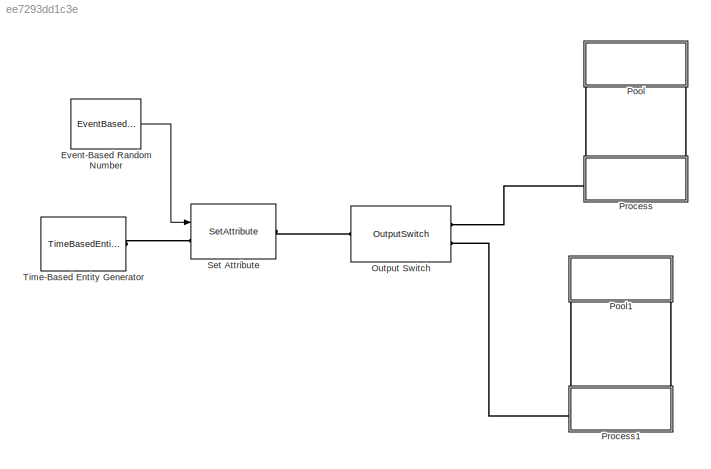
MODEL slx_ee7293dd1c3e
KIND model
BLOCK [EventBasedRandomNumber] Event-Based Random Number
  Distribution = Arbitrary discrete
  OutputPortMap = o0
  Ports = [0, 1]
  probVecDisc = [0.4 0.6]
  valueVecDisc = [1 2]
BLOCK [OutputSwitch] Output Switch
  AttributeName = Type
  NumberOutputPorts = 2
  Ports = [0, 0, 0, 0, 0, 1, 2]
  SwitchingCriterion = From attribute
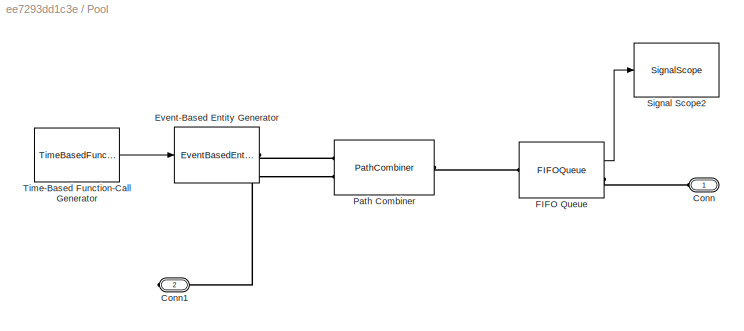
BLOCK [SubSystem] Pool
  FunctionWithSeparateData = off
  MaskHideContents = off
  MinAlgLoopOccurrences = off
  Opaque = off
  Ports = [0, 0, 0, 0, 0, 1, 1]
  PropExecContextOutsideSubsystem = off
  RTWSystemCode = Auto
  RequestExecContextInheritance = off
BLOCK [PMIOPort] Pool/Conn
  Port = 1
  Side = Left
BLOCK [PMIOPort] Pool/Conn1
  Port = 2
  Side = Right
BLOCK [EventBasedEntityGenerator] Pool/Event-Based Entity Generator
  GenerateEntitiesUpon = Function call from port fcn
  InputPortMap = u0
  Ports = [1, 0, 0, 0, 0, 0, 1]
BLOCK [FIFOQueue] Pool/FIFO Queue
  OutputPortMap = o1
  Ports = [0, 1, 0, 0, 0, 1, 1]
  StatNumberInBlock = on
BLOCK [PathCombiner] Pool/Path Combiner
  InputPortPrecedence = Round robin
  NumberInputPorts = 2
  Ports = [0, 0, 0, 0, 0, 2, 1]
BLOCK [SignalScope] Pool/Signal Scope2
  CopyFcn = des.scope.CallbackSupport('seCopyFcn',gcbh)
  DeleteFcn = des.scope.CallbackSupport('seDeleteFcn',gcbh)
  InputPortMap = u0
  LoadFcn = des.scope.CallbackSupport('seLoadFcn',gcbh)
  NameChangeFcn = des.scope.CallbackSupport('seNameChangeFcn',gcbh)
  OpenFcn = des.scope.CallbackSupport('seOpenFcn',gcbh)
  Ports = [1]
  PreSaveFcn = des.scope.CallbackSupport('sePreSaveFcn',gcbh)
  StartFcn = des.scope.CallbackSupport('seStartFcn',gcbh)
  StopFcn = des.scope.CallbackSupport('seStopFcn',gcbh)
BLOCK [TimeBasedFunctionCallGenerator] Pool/Time-Based Function-Call Generator
  EventGenerationMode = Only at simulation start
  NumberOfEventsPerPeriod = 4
  OutputPortMap = o0
  Ports = [0, 1]
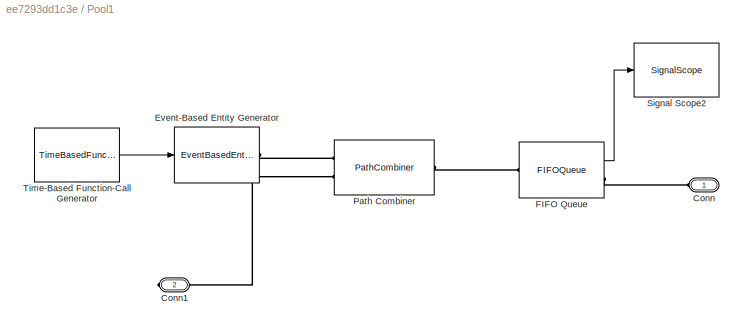
BLOCK [SubSystem] Pool1
  FunctionWithSeparateData = off
  MaskHideContents = off
  MinAlgLoopOccurrences = off
  Opaque = off
  Ports = [0, 0, 0, 0, 0, 1, 1]
  PropExecContextOutsideSubsystem = off
  RTWSystemCode = Auto
  RequestExecContextInheritance = off
BLOCK [PMIOPort] Pool1/Conn
  Port = 1
  Side = Left
BLOCK [PMIOPort] Pool1/Conn1
  Port = 2
  Side = Right
BLOCK [EventBasedEntityGenerator] Pool1/Event-Based Entity Generator
  GenerateEntitiesUpon = Function call from port fcn
  InputPortMap = u0
  Ports = [1, 0, 0, 0, 0, 0, 1]
BLOCK [FIFOQueue] Pool1/FIFO Queue
  OutputPortMap = o1
  Ports = [0, 1, 0, 0, 0, 1, 1]
  StatNumberInBlock = on
BLOCK [PathCombiner] Pool1/Path Combiner
  InputPortPrecedence = Round robin
  NumberInputPorts = 2
  Ports = [0, 0, 0, 0, 0, 2, 1]
BLOCK [SignalScope] Pool1/Signal Scope2
  CopyFcn = des.scope.CallbackSupport('seCopyFcn',gcbh)
  DeleteFcn = des.scope.CallbackSupport('seDeleteFcn',gcbh)
  InputPortMap = u0
  LoadFcn = des.scope.CallbackSupport('seLoadFcn',gcbh)
  NameChangeFcn = des.scope.CallbackSupport('seNameChangeFcn',gcbh)
  OpenFcn = des.scope.CallbackSupport('seOpenFcn',gcbh)
  Ports = [1]
  PreSaveFcn = des.scope.CallbackSupport('sePreSaveFcn',gcbh)
  StartFcn = des.scope.CallbackSupport('seStartFcn',gcbh)
  StopFcn = des.scope.CallbackSupport('seStopFcn',gcbh)
BLOCK [TimeBasedFunctionCallGenerator] Pool1/Time-Based Function-Call Generator
  EventGenerationMode = Only at simulation start
  NumberOfEventsPerPeriod = 4
  OutputPortMap = o0
  Ports = [0, 1]
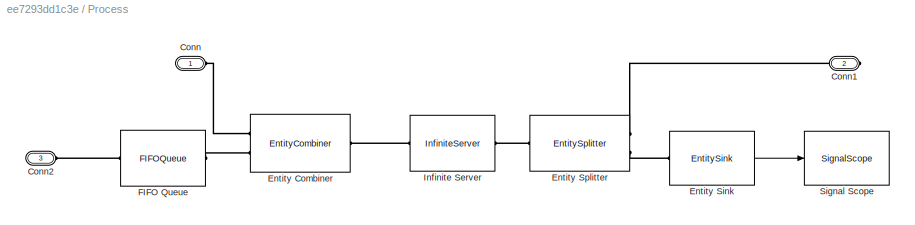
BLOCK [SubSystem] Process
  FunctionWithSeparateData = off
  MaskHideContents = off
  MinAlgLoopOccurrences = off
  Opaque = off
  Ports = [0, 0, 0, 0, 0, 2, 1]
  PropExecContextOutsideSubsystem = off
  RTWSystemCode = Auto
  RequestExecContextInheritance = off
BLOCK [PMIOPort] Process/Conn
  Port = 1
  Side = Left
BLOCK [PMIOPort] Process/Conn1
  Port = 2
  Side = Right
BLOCK [PMIOPort] Process/Conn2
  Port = 3
  Side = Left
BLOCK [EntityCombiner] Process/Entity Combiner
  NumberInputPorts = 2
  Ports = [0, 0, 0, 0, 0, 2, 1]
BLOCK [EntitySink] Process/Entity Sink
  OutputPortMap = o0
  Ports = [0, 1, 0, 0, 0, 1]
  StatNumberArrived = on
BLOCK [EntitySplitter] Process/Entity Splitter
  NumberOutputPorts = 2
  Ports = [0, 0, 0, 0, 0, 1, 2]
BLOCK [FIFOQueue] Process/FIFO Queue
  Capacity = 4
  Ports = [0, 0, 0, 0, 0, 1, 1]
BLOCK [InfiniteServer] Process/Infinite Server
  Ports = [0, 0, 0, 0, 0, 1, 1]
  ServiceTime = 2
BLOCK [SignalScope] Process/Signal Scope
  CopyFcn = des.scope.CallbackSupport('seCopyFcn',gcbh)
  DeleteFcn = des.scope.CallbackSupport('seDeleteFcn',gcbh)
  InputPortMap = u0
  LoadFcn = des.scope.CallbackSupport('seLoadFcn',gcbh)
  NameChangeFcn = des.scope.CallbackSupport('seNameChangeFcn',gcbh)
  OpenFcn = des.scope.CallbackSupport('seOpenFcn',gcbh)
  Ports = [1]
  PreSaveFcn = des.scope.CallbackSupport('sePreSaveFcn',gcbh)
  StartFcn = des.scope.CallbackSupport('seStartFcn',gcbh)
  StopFcn = des.scope.CallbackSupport('seStopFcn',gcbh)
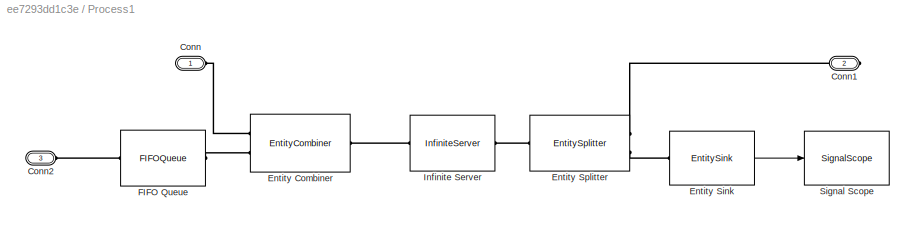
BLOCK [SubSystem] Process1
  FunctionWithSeparateData = off
  MaskHideContents = off
  MinAlgLoopOccurrences = off
  Opaque = off
  Ports = [0, 0, 0, 0, 0, 2, 1]
  PropExecContextOutsideSubsystem = off
  RTWSystemCode = Auto
  RequestExecContextInheritance = off
BLOCK [PMIOPort] Process1/Conn
  Port = 1
  Side = Left
BLOCK [PMIOPort] Process1/Conn1
  Port = 2
  Side = Right
BLOCK [PMIOPort] Process1/Conn2
  Port = 3
  Side = Left
BLOCK [EntityCombiner] Process1/Entity Combiner
  NumberInputPorts = 2
  Ports = [0, 0, 0, 0, 0, 2, 1]
BLOCK [EntitySink] Process1/Entity Sink
  OutputPortMap = o0
  Ports = [0, 1, 0, 0, 0, 1]
  StatNumberArrived = on
BLOCK [EntitySplitter] Process1/Entity Splitter
  NumberOutputPorts = 2
  Ports = [0, 0, 0, 0, 0, 1, 2]
BLOCK [FIFOQueue] Process1/FIFO Queue
  Capacity = 8
  Ports = [0, 0, 0, 0, 0, 1, 1]
BLOCK [InfiniteServer] Process1/Infinite Server
  Ports = [0, 0, 0, 0, 0, 1, 1]
  ServiceTime = 3
BLOCK [SignalScope] Process1/Signal Scope
  CopyFcn = des.scope.CallbackSupport('seCopyFcn',gcbh)
  DeleteFcn = des.scope.CallbackSupport('seDeleteFcn',gcbh)
  InputPortMap = u0
  LoadFcn = des.scope.CallbackSupport('seLoadFcn',gcbh)
  NameChangeFcn = des.scope.CallbackSupport('seNameChangeFcn',gcbh)
  OpenFcn = des.scope.CallbackSupport('seOpenFcn',gcbh)
  Ports = [1]
  PreSaveFcn = des.scope.CallbackSupport('sePreSaveFcn',gcbh)
  StartFcn = des.scope.CallbackSupport('seStartFcn',gcbh)
  StopFcn = des.scope.CallbackSupport('seStopFcn',gcbh)
BLOCK [SetAttribute] Set Attribute
  AttributeFrom = Signal port
  AttributeName = Type
  EvaluatedAttributeValue = { []}
  InputPortMap = u0
  Ports = [1, 0, 0, 0, 0, 1, 1]
BLOCK [TimeBasedEntityGenerator] Time-Based Entity Generator
  Distribution = Uniform
  Maximum = 0.2
  Minimum = 0.01
  Ports = [0, 0, 0, 0, 0, 0, 1]
LINE Event-Based Random Number:1 -> Set Attribute:1
LINE Pool/FIFO Queue:1 -> Pool/Signal Scope2:1
LINE Pool/Time-Based Function-Call Generator:1 -> Pool/Event-Based Entity Generator:1
LINE Pool1/FIFO Queue:1 -> Pool1/Signal Scope2:1
LINE Pool1/Time-Based Function-Call Generator:1 -> Pool1/Event-Based Entity Generator:1
LINE Process/Entity Sink:1 -> Process/Signal Scope:1
LINE Process1/Entity Sink:1 -> Process1/Signal Scope:1
PLINE Output Switch:LConn1 -- Set Attribute:RConn1
PLINE Output Switch:RConn1 -- Process:LConn2
PLINE Output Switch:RConn2 -- Process1:LConn2
PLINE Pool/Conn1:RConn1 -- Pool/Path Combiner:LConn2
PLINE Pool/Conn:RConn1 -- Pool/FIFO Queue:RConn1
PLINE Pool/Event-Based Entity Generator:RConn1 -- Pool/Path Combiner:LConn1
PLINE Pool/FIFO Queue:LConn1 -- Pool/Path Combiner:RConn1
PLINE Pool1/Conn1:RConn1 -- Pool1/Path Combiner:LConn2
PLINE Pool1/Conn:RConn1 -- Pool1/FIFO Queue:RConn1
PLINE Pool1/Event-Based Entity Generator:RConn1 -- Pool1/Path Combiner:LConn1
PLINE Pool1/FIFO Queue:LConn1 -- Pool1/Path Combiner:RConn1
PLINE Pool1:LConn1 -- Process1:LConn1
PLINE Pool1:RConn1 -- Process1:RConn1
PLINE Pool:LConn1 -- Process:LConn1
PLINE Pool:RConn1 -- Process:RConn1
PLINE Process/Conn1:RConn1 -- Process/Entity Splitter:RConn1
PLINE Process/Conn2:RConn1 -- Process/FIFO Queue:LConn1
PLINE Process/Conn:RConn1 -- Process/Entity Combiner:LConn1
PLINE Process/Entity Combiner:LConn2 -- Process/FIFO Queue:RConn1
PLINE Process/Entity Combiner:RConn1 -- Process/Infinite Server:LConn1
PLINE Process/Entity Sink:LConn1 -- Process/Entity Splitter:RConn2
PLINE Process/Entity Splitter:LConn1 -- Process/Infinite Server:RConn1
PLINE Process1/Conn1:RConn1 -- Process1/Entity Splitter:RConn1
PLINE Process1/Conn2:RConn1 -- Process1/FIFO Queue:LConn1
PLINE Process1/Conn:RConn1 -- Process1/Entity Combiner:LConn1
PLINE Process1/Entity Combiner:LConn2 -- Process1/FIFO Queue:RConn1
PLINE Process1/Entity Combiner:RConn1 -- Process1/Infinite Server:LConn1
PLINE Process1/Entity Sink:LConn1 -- Process1/Entity Splitter:RConn2
PLINE Process1/Entity Splitter:LConn1 -- Process1/Infinite Server:RConn1
PLINE Set Attribute:LConn1 -- Time-Based Entity Generator:RConn1
